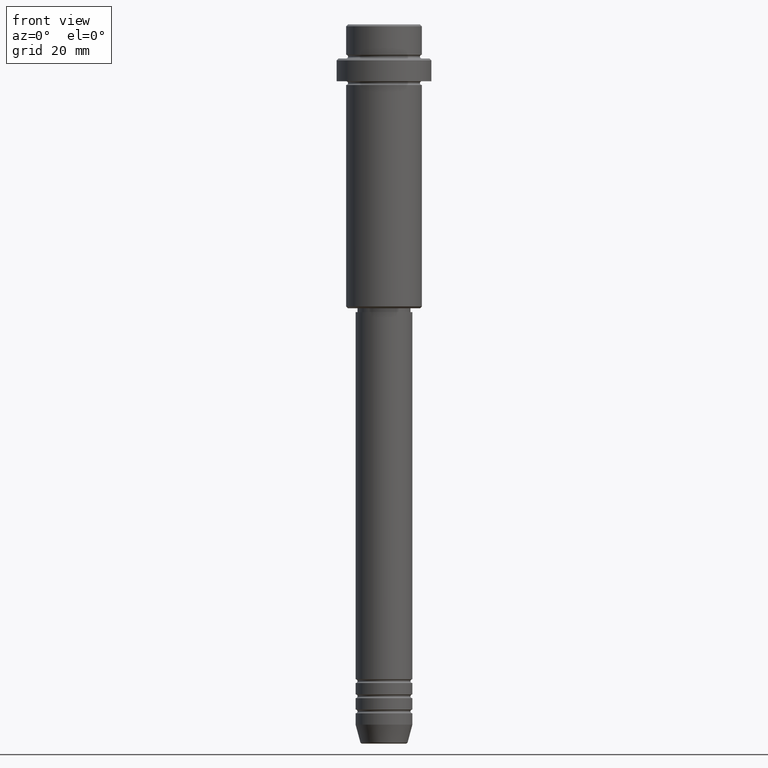
[diagram: clean part render]
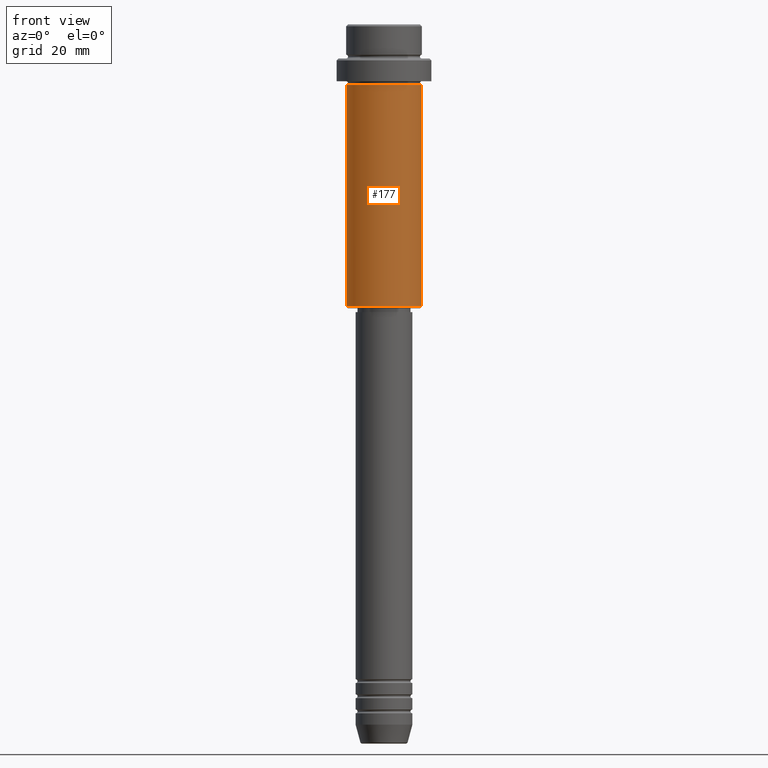
[diagram: same view with one face highlighted and labeled with its STEP entity id]
A machine part, front view. The second image highlights one B-rep face of the part: STEP entity #177.
In plain terms, the highlighted cylindrical surface (partial cylindrical patch) has radius 10 mm, axis along (-0, -0, 1).
Its self-contained STEP definition (entity closure, byte-faithful):
#11 = CARTESIAN_POINT ( 'NONE',  ( -10.00000000000000000, 1.224646799147353256E-15, 0.000000000000000000 ) ) ;
#45 = EDGE_CURVE ( 'NONE', #1115, #1070, #984, .T. ) ;
#102 = CARTESIAN_POINT ( 'NONE',  ( 0.000000000000000000, 0.000000000000000000, 0.000000000000000000 ) ) ;
#121 = DIRECTION ( 'NONE',  ( -0.000000000000000000, -0.000000000000000000, 1.000000000000000000 ) ) ;
#177 = ADVANCED_FACE ( 'NONE', ( #601 ), #490, .T. ) ;
#214 = VECTOR ( 'NONE', #1207, 1000.000000000000000 ) ;
#306 = DIRECTION ( 'NONE',  ( -0.000000000000000000, -0.000000000000000000, 1.000000000000000000 ) ) ;
#359 = CARTESIAN_POINT ( 'NONE',  ( 0.000000000000000000, 0.000000000000000000, -74.49999999999998579 ) ) ;
#382 = CARTESIAN_POINT ( 'NONE',  ( -10.00000000000000000, 1.224646799147353256E-15, -16.00000000000000000 ) ) ;
#417 = CIRCLE ( 'NONE', #1016, 10.00000000000000000 ) ;
#424 = CARTESIAN_POINT ( 'NONE',  ( 10.00000000000000000, 0.000000000000000000, 0.000000000000000000 ) ) ;
#426 = CARTESIAN_POINT ( 'NONE',  ( 10.00000000000000000, 0.000000000000000000, -16.00000000000000000 ) ) ;
#429 = DIRECTION ( 'NONE',  ( -0.000000000000000000, -0.000000000000000000, 1.000000000000000000 ) ) ;
#438 = AXIS2_PLACEMENT_3D ( 'NONE', #470, #121, #875 ) ;
#443 = EDGE_CURVE ( 'NONE', #476, #1216, #871, .T. ) ;
#470 = CARTESIAN_POINT ( 'NONE',  ( 0.000000000000000000, 0.000000000000000000, -16.00000000000000000 ) ) ;
#476 = VERTEX_POINT ( 'NONE', #653 ) ;
#490 = CYLINDRICAL_SURFACE ( 'NONE', #626, 10.00000000000000000 ) ;
#601 = FACE_OUTER_BOUND ( 'NONE', #948, .T. ) ;
#626 = AXIS2_PLACEMENT_3D ( 'NONE', #102, #306, #1408 ) ;
#637 = ORIENTED_EDGE ( 'NONE', *, *, #676, .T. ) ;
#653 = CARTESIAN_POINT ( 'NONE',  ( 10.00000000000000000, 0.000000000000000000, -74.49999999999998579 ) ) ;
#676 = EDGE_CURVE ( 'NONE', #1115, #476, #417, .T. ) ;
#795 = DIRECTION ( 'NONE',  ( -1.000000000000000000, 0.000000000000000000, 0.000000000000000000 ) ) ;
#815 = CARTESIAN_POINT ( 'NONE',  ( -10.00000000000000000, 1.224646799147353256E-15, -74.49999999999998579 ) ) ;
#816 = DIRECTION ( 'NONE',  ( -0.000000000000000000, -0.000000000000000000, 1.000000000000000000 ) ) ;
#871 = LINE ( 'NONE', #424, #214 ) ;
#875 = DIRECTION ( 'NONE',  ( 1.000000000000000000, 0.000000000000000000, 0.000000000000000000 ) ) ;
#926 = CIRCLE ( 'NONE', #438, 10.00000000000000000 ) ;
#948 = EDGE_LOOP ( 'NONE', ( #1199, #637, #980, #1076 ) ) ;
#980 = ORIENTED_EDGE ( 'NONE', *, *, #443, .T. ) ;
#984 = LINE ( 'NONE', #11, #1345 ) ;
#1016 = AXIS2_PLACEMENT_3D ( 'NONE', #359, #816, #795 ) ;
#1070 = VERTEX_POINT ( 'NONE', #382 ) ;
#1076 = ORIENTED_EDGE ( 'NONE', *, *, #1312, .F. ) ;
#1115 = VERTEX_POINT ( 'NONE', #815 ) ;
#1199 = ORIENTED_EDGE ( 'NONE', *, *, #45, .F. ) ;
#1207 = DIRECTION ( 'NONE',  ( -0.000000000000000000, -0.000000000000000000, 1.000000000000000000 ) ) ;
#1216 = VERTEX_POINT ( 'NONE', #426 ) ;
#1312 = EDGE_CURVE ( 'NONE', #1070, #1216, #926, .T. ) ;
#1345 = VECTOR ( 'NONE', #429, 1000.000000000000000 ) ;
#1408 = DIRECTION ( 'NONE',  ( 1.000000000000000000, 0.000000000000000000, 0.000000000000000000 ) ) ;